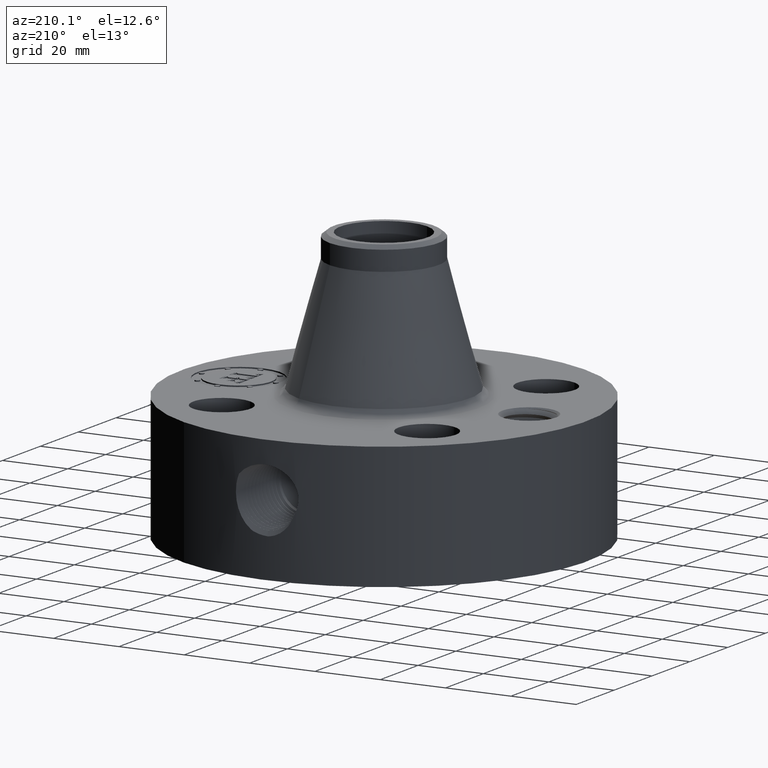
[diagram: clean part render]
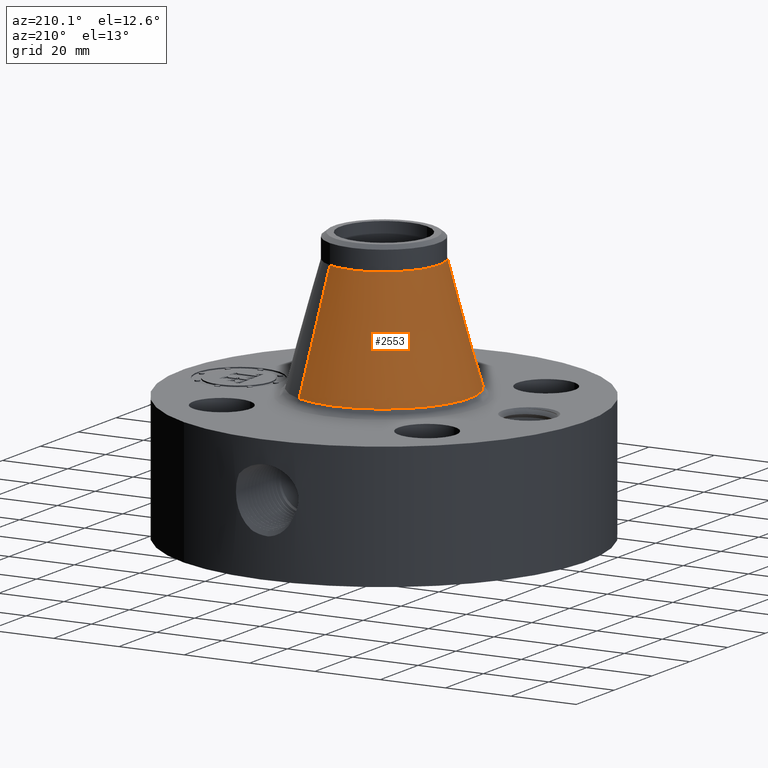
[diagram: same view with one face highlighted and labeled with its STEP entity id]
A machine part, auxiliary view. The second image highlights one B-rep face of the part: STEP entity #2553.
In plain terms, the highlighted conical surface has half-angle 15.22 deg.
Its self-contained STEP definition (entity closure, byte-faithful):
#1862=AXIS2_PLACEMENT_3D('Circle Axis2P3D',#1860,#1861,$) ;
#2514=AXIS2_PLACEMENT_3D('Cone Axis2P3D',#2511,#2512,#2513) ;
#2544=AXIS2_PLACEMENT_3D('Circle Axis2P3D',#2542,#2543,$) ;
#1838=CARTESIAN_POINT('Vertex',(0.496647878182,0.909107843027,1.64849707969)) ;
#1845=CARTESIAN_POINT('Vertex',(-0.496647878182,-0.909107843027,1.64849707969)) ;
#1860=CARTESIAN_POINT('Axis2P3D Location',(0.,0.,1.64849707969)) ;
#2511=CARTESIAN_POINT('Axis2P3D Location',(0.,0.,3.03022616857)) ;
#2516=CARTESIAN_POINT('Line Origine',(0.406534366831,0.744156166938,2.33936162413)) ;
#2520=CARTESIAN_POINT('Vertex',(0.31642085548,0.57920449085,3.03022616857)) ;
#2527=CARTESIAN_POINT('Vertex',(-0.31642085548,-0.57920449085,3.03022616857)) ;
#2530=CARTESIAN_POINT('Line Origine',(-0.406534366831,-0.744156166938,2.33936162413)) ;
#2542=CARTESIAN_POINT('Axis2P3D Location',(0.,0.,3.03022616857)) ;
#1861=DIRECTION('Axis2P3D Direction',(0.,0.,-0.0393700787402)) ;
#2512=DIRECTION('Axis2P3D Direction',(0.,0.,-0.0393700787402)) ;
#2513=DIRECTION('Axis2P3D XDirection',(-0.0188750212049,-0.0345504945626,0.)) ;
#2517=DIRECTION('Vector Direction',(0.00495515240905,0.00907034564397,-0.0379891878632)) ;
#2531=DIRECTION('Vector Direction',(-0.00495515240905,-0.00907034564397,-0.0379891878632)) ;
#2543=DIRECTION('Axis2P3D Direction',(0.,0.,-0.0393700787402)) ;
#2518=VECTOR('Line Direction',#2517,0.0393700787402) ;
#2532=VECTOR('Line Direction',#2531,0.0393700787402) ;
#2548=ORIENTED_EDGE('',*,*,#1864,.F.) ;
#2549=ORIENTED_EDGE('',*,*,#2534,.T.) ;
#2550=ORIENTED_EDGE('',*,*,#2546,.T.) ;
#2551=ORIENTED_EDGE('',*,*,#2522,.F.) ;
#2553=ADVANCED_FACE('PartBody',(#2552),#2515,.T.) ;
#1863=CIRCLE('generated circle',#1862,1.03592286641) ;
#2545=CIRCLE('generated circle',#2544,0.660000000003) ;
#2515=CONICAL_SURFACE('Cone',#2514,0.660000000003,0.2656373701) ;
#1864=EDGE_CURVE('',#1846,#1839,#1863,.T.) ;
#2522=EDGE_CURVE('',#1839,#2521,#2519,.F.) ;
#2534=EDGE_CURVE('',#1846,#2528,#2533,.F.) ;
#2546=EDGE_CURVE('',#2528,#2521,#2545,.T.) ;
#2547=EDGE_LOOP('',(#2548,#2549,#2550,#2551)) ;
#2552=FACE_OUTER_BOUND('',#2547,.T.) ;
#2519=LINE('Line',#2516,#2518) ;
#2533=LINE('Line',#2530,#2532) ;
#1839=VERTEX_POINT('',#1838) ;
#1846=VERTEX_POINT('',#1845) ;
#2521=VERTEX_POINT('',#2520) ;
#2528=VERTEX_POINT('',#2527) ;